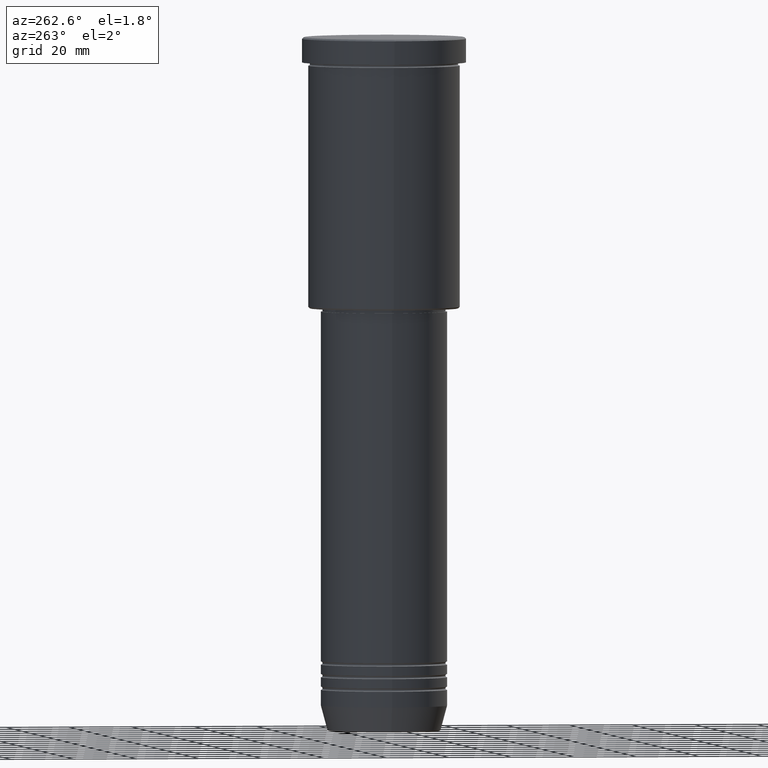
[diagram: clean part render]
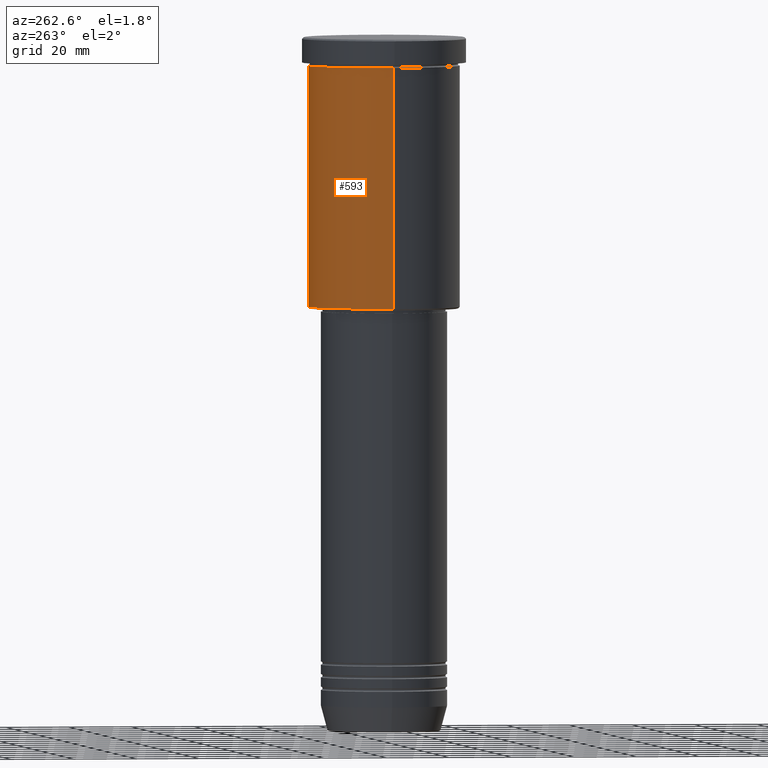
[diagram: same view with one face highlighted and labeled with its STEP entity id]
A machine part, auxiliary view. The second image highlights one B-rep face of the part: STEP entity #593.
In plain terms, the highlighted cylindrical surface (partial cylindrical patch) has radius 24 mm, axis along (-0, -0, 1).
Its self-contained STEP definition (entity closure, byte-faithful):
#69 = DIRECTION ( 'NONE',  ( 1.000000000000000000, 0.000000000000000000, 0.000000000000000000 ) ) ;
#109 = CIRCLE ( 'NONE', #651, 24.00000000000000000 ) ;
#226 = LINE ( 'NONE', #1135, #850 ) ;
#241 = VERTEX_POINT ( 'NONE', #313 ) ;
#286 = CIRCLE ( 'NONE', #925, 24.00000000000000000 ) ;
#313 = CARTESIAN_POINT ( 'NONE',  ( -24.00000000000000000, 2.939152317953647894E-15, -85.49999999999998579 ) ) ;
#333 = EDGE_CURVE ( 'NONE', #817, #241, #109, .T. ) ;
#335 = DIRECTION ( 'NONE',  ( -0.000000000000000000, -0.000000000000000000, 1.000000000000000000 ) ) ;
#403 = LINE ( 'NONE', #1125, #820 ) ;
#436 = DIRECTION ( 'NONE',  ( 1.000000000000000000, 0.000000000000000000, 0.000000000000000000 ) ) ;
#446 = DIRECTION ( 'NONE',  ( -0.000000000000000000, -0.000000000000000000, 1.000000000000000000 ) ) ;
#451 = CARTESIAN_POINT ( 'NONE',  ( 0.000000000000000000, 0.000000000000000000, -85.49999999999998579 ) ) ;
#468 = EDGE_CURVE ( 'NONE', #817, #860, #226, .T. ) ;
#478 = ORIENTED_EDGE ( 'NONE', *, *, #676, .T. ) ;
#499 = DIRECTION ( 'NONE',  ( -0.000000000000000000, -0.000000000000000000, 1.000000000000000000 ) ) ;
#576 = CYLINDRICAL_SURFACE ( 'NONE', #1025, 24.00000000000000000 ) ;
#593 = ADVANCED_FACE ( 'NONE', ( #749 ), #576, .T. ) ;
#624 = CARTESIAN_POINT ( 'NONE',  ( 0.000000000000000000, 0.000000000000000000, 0.000000000000000000 ) ) ;
#651 = AXIS2_PLACEMENT_3D ( 'NONE', #451, #812, #1183 ) ;
#676 = EDGE_CURVE ( 'NONE', #241, #900, #403, .T. ) ;
#704 = ORIENTED_EDGE ( 'NONE', *, *, #946, .F. ) ;
#736 = CARTESIAN_POINT ( 'NONE',  ( 24.00000000000000000, 0.000000000000000000, -8.999999999999994671 ) ) ;
#745 = CARTESIAN_POINT ( 'NONE',  ( 24.00000000000000000, 0.000000000000000000, -85.49999999999998579 ) ) ;
#749 = FACE_OUTER_BOUND ( 'NONE', #1148, .T. ) ;
#757 = CARTESIAN_POINT ( 'NONE',  ( -24.00000000000000000, 2.939152317953647894E-15, -8.999999999999994671 ) ) ;
#794 = DIRECTION ( 'NONE',  ( -0.000000000000000000, -0.000000000000000000, 1.000000000000000000 ) ) ;
#812 = DIRECTION ( 'NONE',  ( -0.000000000000000000, -0.000000000000000000, 1.000000000000000000 ) ) ;
#817 = VERTEX_POINT ( 'NONE', #745 ) ;
#820 = VECTOR ( 'NONE', #335, 1000.000000000000000 ) ;
#850 = VECTOR ( 'NONE', #499, 1000.000000000000000 ) ;
#860 = VERTEX_POINT ( 'NONE', #736 ) ;
#877 = ORIENTED_EDGE ( 'NONE', *, *, #333, .T. ) ;
#889 = CARTESIAN_POINT ( 'NONE',  ( 0.000000000000000000, 0.000000000000000000, -8.999999999999994671 ) ) ;
#900 = VERTEX_POINT ( 'NONE', #757 ) ;
#925 = AXIS2_PLACEMENT_3D ( 'NONE', #889, #794, #436 ) ;
#946 = EDGE_CURVE ( 'NONE', #860, #900, #286, .T. ) ;
#1025 = AXIS2_PLACEMENT_3D ( 'NONE', #624, #446, #69 ) ;
#1049 = ORIENTED_EDGE ( 'NONE', *, *, #468, .F. ) ;
#1125 = CARTESIAN_POINT ( 'NONE',  ( -24.00000000000000000, 2.939152317953647894E-15, 0.000000000000000000 ) ) ;
#1135 = CARTESIAN_POINT ( 'NONE',  ( 24.00000000000000000, 0.000000000000000000, 0.000000000000000000 ) ) ;
#1148 = EDGE_LOOP ( 'NONE', ( #877, #478, #704, #1049 ) ) ;
#1183 = DIRECTION ( 'NONE',  ( -1.000000000000000000, 0.000000000000000000, 0.000000000000000000 ) ) ;